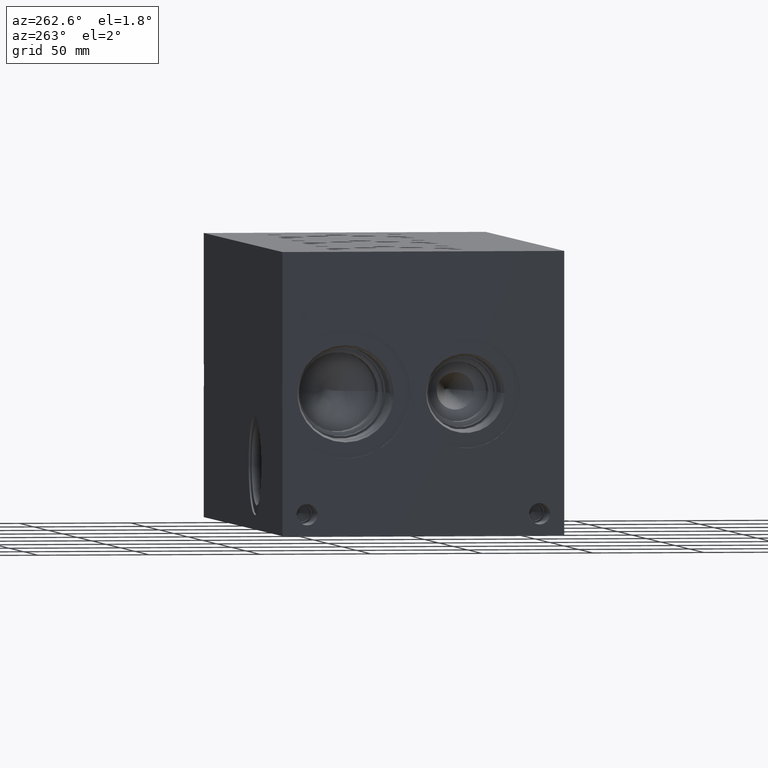
[diagram: clean part render]
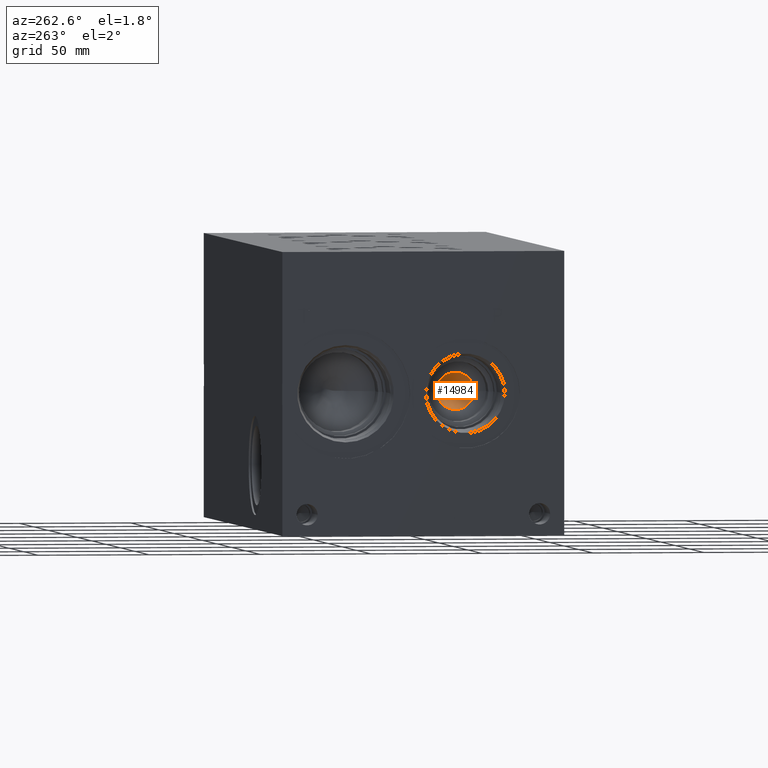
[diagram: same view with one face highlighted and labeled with its STEP entity id]
A machine part, auxiliary view. The second image highlights one B-rep face of the part: STEP entity #14984.
In plain terms, the highlighted conical surface has half-angle 15 deg.
Its self-contained STEP definition (entity closure, byte-faithful):
#91=CONICAL_SURFACE('',#15949,8.8773,0.261799387799149);
#757=CIRCLE('',#15925,8.37465001116991);
#2083=FACE_OUTER_BOUND('',#2962,.T.);
#2962=EDGE_LOOP('',(#13066,#13067,#13068));
#4295=LINE('',#25995,#5586);
#5586=VECTOR('',#19119,8.8773);
#6990=VERTEX_POINT('',#25946);
#7004=VERTEX_POINT('',#25994);
#9043=EDGE_CURVE('',#6990,#6990,#757,.T.);
#9066=EDGE_CURVE('',#6990,#7004,#4295,.T.);
#13066=ORIENTED_EDGE('',*,*,#9043,.T.);
#13067=ORIENTED_EDGE('',*,*,#9066,.T.);
#13068=ORIENTED_EDGE('',*,*,#9066,.F.);
#14984=ADVANCED_FACE('',(#2083),#91,.F.);
#15925=AXIS2_PLACEMENT_3D('',#25948,#19061,#19062);
#15949=AXIS2_PLACEMENT_3D('',#25993,#19117,#19118);
#19061=DIRECTION('center_axis',(-1.,0.,0.));
#19062=DIRECTION('ref_axis',(0.,1.,0.));
#19117=DIRECTION('center_axis',(-1.,0.,0.));
#19118=DIRECTION('ref_axis',(0.,1.,0.));
#19119=DIRECTION('',(0.965925826289068,0.258819045102521,-3.16961915143176E-17));
#25946=CARTESIAN_POINT('',(35.801379930769,36.0753499888301,63.5));
#25948=CARTESIAN_POINT('Origin',(35.801379930769,44.45,63.5));
#25993=CARTESIAN_POINT('Origin',(33.9254646340312,44.45,63.5));
#25994=CARTESIAN_POINT('',(67.0559992680624,44.45,63.5));
#25995=CARTESIAN_POINT('',(33.9254646340312,35.5727,63.5));